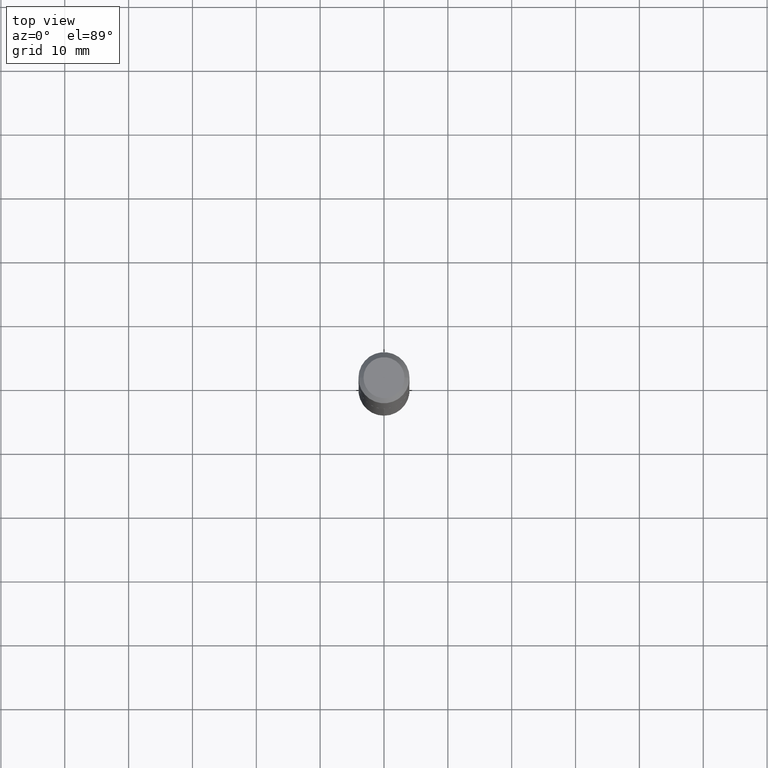
[diagram: clean part render]
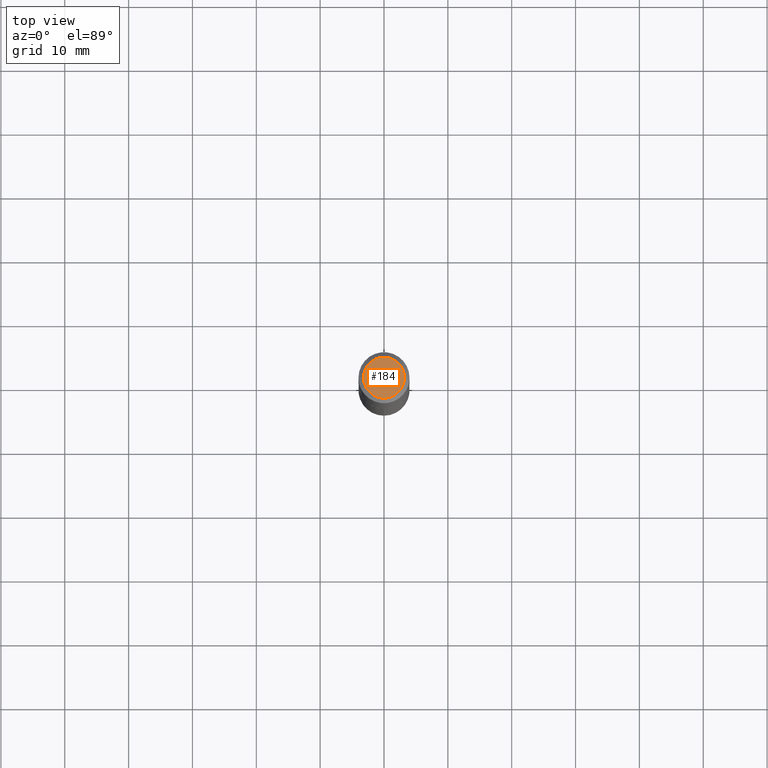
[diagram: same view with one face highlighted and labeled with its STEP entity id]
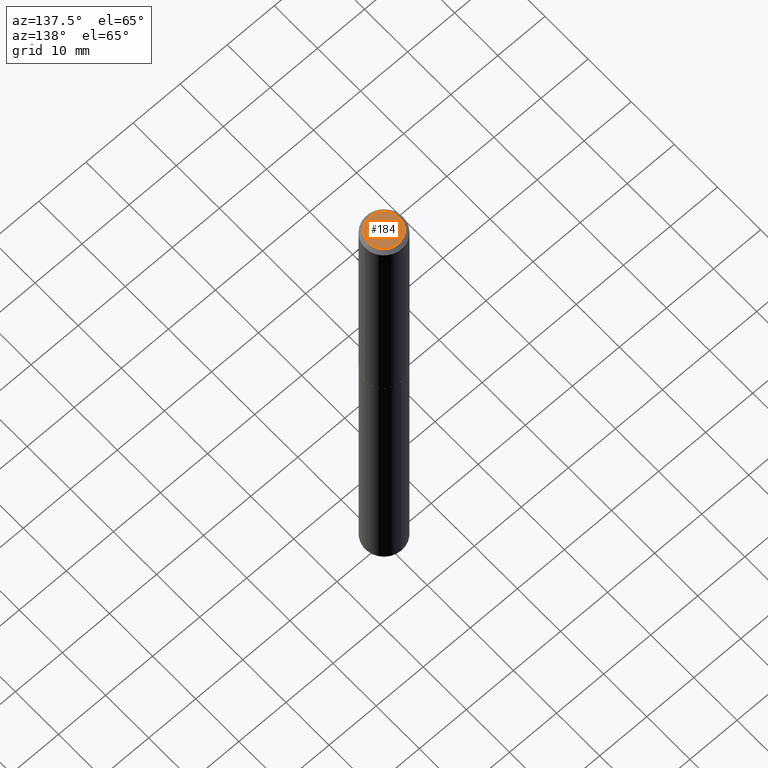
[diagram: same view with one face highlighted and labeled with its STEP entity id]
A machine part, top view. The second image highlights one B-rep face of the part: STEP entity #184.
A second angle (auxiliary view) of the same face is appended — the face is thin or edge-on in the first view.
In plain terms, the highlighted planar face has unit normal (0, -0, -1).
Its self-contained STEP definition (entity closure, byte-faithful):
#36 = AXIS2_PLACEMENT_3D ( 'NONE', #321, #113, #185 ) ;
#37 = CARTESIAN_POINT ( 'NONE',  ( -0.1262499999999999734, 9.361534339773144209E-16, 4.825108388634215244E-18 ) ) ;
#38 = FACE_OUTER_BOUND ( 'NONE', #247, .T. ) ;
#45 = PLANE ( 'NONE',  #212 ) ;
#51 = ORIENTED_EDGE ( 'NONE', *, *, #117, .T. ) ;
#83 = CARTESIAN_POINT ( 'NONE',  ( 0.1262499999999999734, -1.027887549353260543E-15, 4.825108388647246856E-18 ) ) ;
#113 = DIRECTION ( 'NONE',  ( -2.445468806185136597E-29, 3.491481338843145583E-15, 1.000000000000000000 ) ) ;
#117 = EDGE_CURVE ( 'NONE', #382, #136, #221, .T. ) ;
#121 = DIRECTION ( 'NONE',  ( -2.445468806185136597E-29, 3.491481338843145583E-15, 1.000000000000000000 ) ) ;
#122 = CIRCLE ( 'NONE', #237, 0.1262499999999999734 ) ;
#136 = VERTEX_POINT ( 'NONE', #37 ) ;
#142 = EDGE_CURVE ( 'NONE', #136, #382, #122, .T. ) ;
#173 = DIRECTION ( 'NONE',  ( -1.000000000000000000, 6.982962677686265922E-15, -4.876176775795935793E-29 ) ) ;
#184 = ADVANCED_FACE ( 'NONE', ( #38 ), #45, .F. ) ;
#185 = DIRECTION ( 'NONE',  ( 1.000000000000000000, -6.982962677686267499E-15, 4.876009584780190244E-29 ) ) ;
#199 = CARTESIAN_POINT ( 'NONE',  ( -5.899826025441371921E-47, 8.423387948417036461E-33, 2.412554194320285406E-18 ) ) ;
#212 = AXIS2_PLACEMENT_3D ( 'NONE', #199, #263, #173 ) ;
#221 = CIRCLE ( 'NONE', #36, 0.1262499999999999734 ) ;
#237 = AXIS2_PLACEMENT_3D ( 'NONE', #295, #121, #324 ) ;
#247 = EDGE_LOOP ( 'NONE', ( #254, #51 ) ) ;
#254 = ORIENTED_EDGE ( 'NONE', *, *, #142, .T. ) ;
#263 = DIRECTION ( 'NONE',  ( 2.438088387897960049E-29, -3.491481338843145188E-15, -1.000000000000000000 ) ) ;
#295 = CARTESIAN_POINT ( 'NONE',  ( -1.179965205088274384E-46, 1.684677589683407292E-32, 4.825108388640570813E-18 ) ) ;
#321 = CARTESIAN_POINT ( 'NONE',  ( -1.179965205088274384E-46, 1.684677589683407292E-32, 4.825108388640570813E-18 ) ) ;
#324 = DIRECTION ( 'NONE',  ( 1.000000000000000000, -6.982962677686267499E-15, 4.876009584780190244E-29 ) ) ;
#382 = VERTEX_POINT ( 'NONE', #83 ) ;